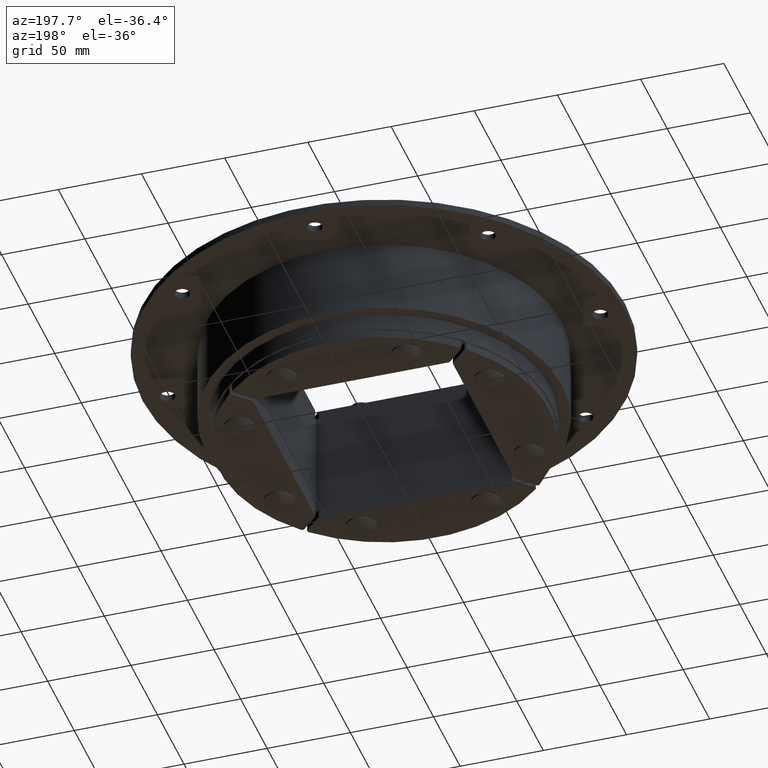
[diagram: clean part render]
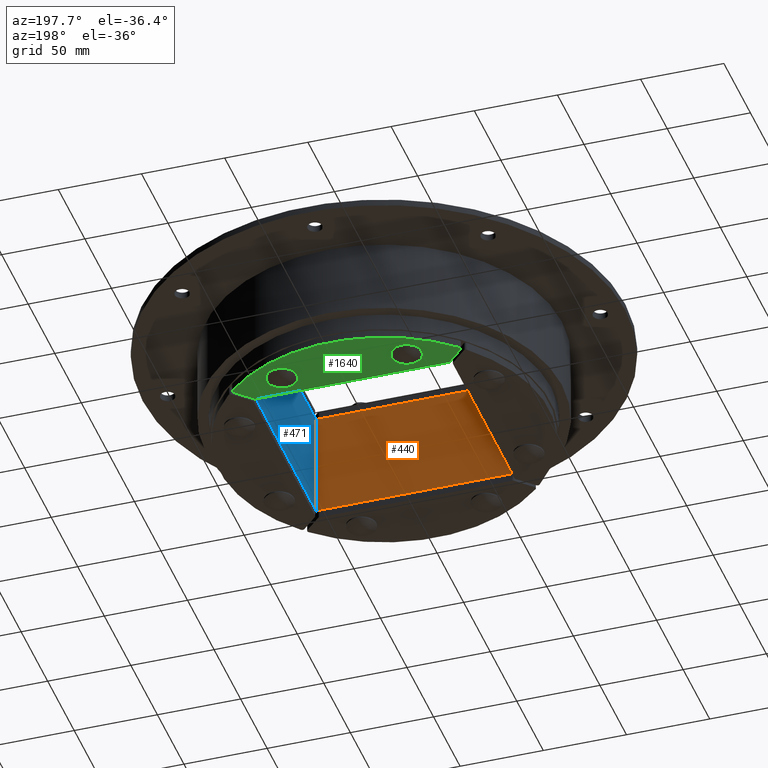
[diagram: same view with three faces highlighted in distinct colors, each labeled with its STEP entity id]
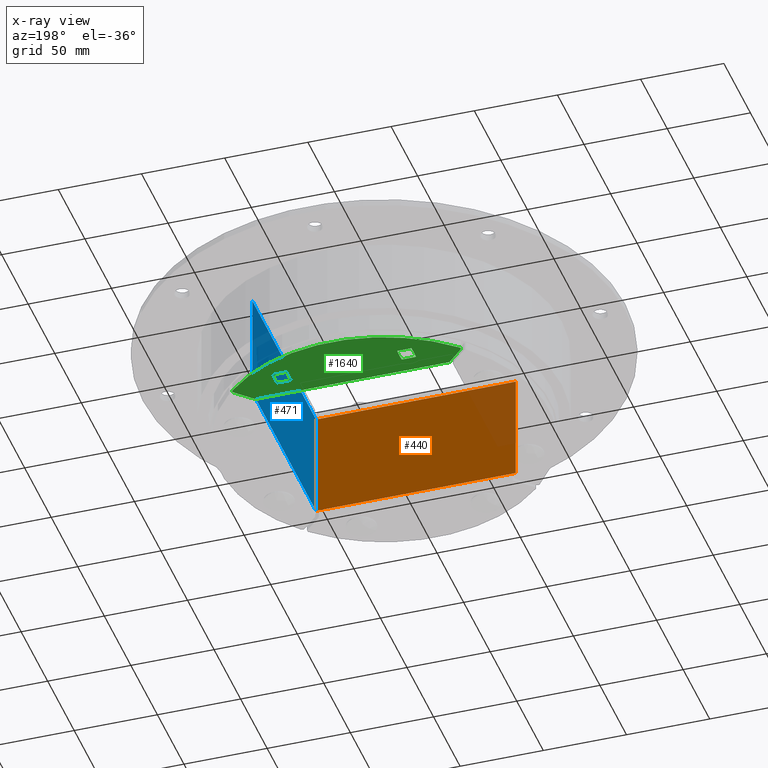
[diagram: x-ray of the same camera — body ghosted, the three highlighted faces saturated]
A machine part, auxiliary view with three faces highlighted in distinct colors.
The next image is the same camera in x-ray (body ghosted, the three faces saturated) — at least one of them is partly hidden behind the body in this view.
Their STEP definitions:

[orange] entity #440 — the highlighted planar face has unit normal (0, -1, 0).
#377=CARTESIAN_POINT('',(-60.0,-60.0,-65.0));
#378=VERTEX_POINT('',#377);
#393=CARTESIAN_POINT('',(-60.0,-60.0,0.0));
#394=VERTEX_POINT('',#393);
#401=CARTESIAN_POINT('',(-60.0,-60.0,0.0));
#402=DIRECTION('',(0.0,0.0,-1.0));
#403=VECTOR('',#402,65.0);
#404=LINE('',#401,#403);
#405=EDGE_CURVE('',#394,#378,#404,.T.);
#410=CARTESIAN_POINT('',(60.0,-60.0,0.0));
#411=DIRECTION('',(0.0,-1.0,0.0));
#412=DIRECTION('',(-1.0,0.0,0.0));
#413=AXIS2_PLACEMENT_3D('',#410,#411,#412);
#414=PLANE('',#413);
#415=CARTESIAN_POINT('',(60.0,-60.0,-65.0));
#416=VERTEX_POINT('',#415);
#417=CARTESIAN_POINT('',(-60.0,-60.0,-65.0));
#418=DIRECTION('',(1.0,0.0,0.0));
#419=VECTOR('',#418,120.0);
#420=LINE('',#417,#419);
#421=EDGE_CURVE('',#378,#416,#420,.T.);
#422=ORIENTED_EDGE('',*,*,#421,.F.);
#423=ORIENTED_EDGE('',*,*,#405,.F.);
#424=CARTESIAN_POINT('',(60.0,-60.0,0.0));
#425=VERTEX_POINT('',#424);
#426=CARTESIAN_POINT('',(60.0,-60.0,0.0));
#427=DIRECTION('',(-1.0,0.0,0.0));
#428=VECTOR('',#427,120.0);
#429=LINE('',#426,#428);
#430=EDGE_CURVE('',#425,#394,#429,.T.);
#431=ORIENTED_EDGE('',*,*,#430,.F.);
#432=CARTESIAN_POINT('',(60.0,-60.0,0.0));
#433=DIRECTION('',(0.0,0.0,-1.0));
#434=VECTOR('',#433,65.0);
#435=LINE('',#432,#434);
#436=EDGE_CURVE('',#425,#416,#435,.T.);
#437=ORIENTED_EDGE('',*,*,#436,.T.);
#438=EDGE_LOOP('',(#422,#423,#431,#437));
#439=FACE_OUTER_BOUND('',#438,.T.);
#440=ADVANCED_FACE('',(#439),#414,.F.);

[blue] entity #471 — the highlighted planar face has unit normal (1, 0, 0).
#415=CARTESIAN_POINT('',(60.0,-60.0,-65.0));
#416=VERTEX_POINT('',#415);
#424=CARTESIAN_POINT('',(60.0,-60.0,0.0));
#425=VERTEX_POINT('',#424);
#432=CARTESIAN_POINT('',(60.0,-60.0,0.0));
#433=DIRECTION('',(0.0,0.0,-1.0));
#434=VECTOR('',#433,65.0);
#435=LINE('',#432,#434);
#436=EDGE_CURVE('',#425,#416,#435,.T.);
#441=CARTESIAN_POINT('',(60.0,60.0,0.0));
#442=DIRECTION('',(1.0,0.0,0.0));
#443=DIRECTION('',(0.0,-1.0,0.0));
#444=AXIS2_PLACEMENT_3D('',#441,#442,#443);
#445=PLANE('',#444);
#446=CARTESIAN_POINT('',(60.0,60.0,-65.0));
#447=VERTEX_POINT('',#446);
#448=CARTESIAN_POINT('',(60.0,-60.0,-65.0));
#449=DIRECTION('',(0.0,1.0,0.0));
#450=VECTOR('',#449,120.0);
#451=LINE('',#448,#450);
#452=EDGE_CURVE('',#416,#447,#451,.T.);
#453=ORIENTED_EDGE('',*,*,#452,.F.);
#454=ORIENTED_EDGE('',*,*,#436,.F.);
#455=CARTESIAN_POINT('',(60.0,60.0,0.0));
#456=VERTEX_POINT('',#455);
#457=CARTESIAN_POINT('',(60.0,60.0,0.0));
#458=DIRECTION('',(0.0,-1.0,0.0));
#459=VECTOR('',#458,120.0);
#460=LINE('',#457,#459);
#461=EDGE_CURVE('',#456,#425,#460,.T.);
#462=ORIENTED_EDGE('',*,*,#461,.F.);
#463=CARTESIAN_POINT('',(60.0,60.0,0.0));
#464=DIRECTION('',(0.0,0.0,-1.0));
#465=VECTOR('',#464,65.0);
#466=LINE('',#463,#465);
#467=EDGE_CURVE('',#456,#447,#466,.T.);
#468=ORIENTED_EDGE('',*,*,#467,.T.);
#469=EDGE_LOOP('',(#453,#454,#462,#468));
#470=FACE_OUTER_BOUND('',#469,.T.);
#471=ADVANCED_FACE('',(#470),#445,.F.);

[green] entity #1640 — the highlighted planar face has unit normal (0, 0, 1).
#1372=CARTESIAN_POINT('',(68.213136979264561,69.627350541637654,-5.0));
#1373=VERTEX_POINT('',#1372);
#1374=CARTESIAN_POINT('',(68.185591835292186,71.775518570546978,-5.0));
#1375=VERTEX_POINT('',#1374);
#1376=CARTESIAN_POINT('',(67.152476807484732,70.688010713417498,-5.0));
#1377=DIRECTION('',(0.0,0.0,1.0));
#1378=DIRECTION('',(0.999917800334658,0.012821566748999,0.0));
#1379=AXIS2_PLACEMENT_3D('',#1376,#1377,#1378);
#1380=CIRCLE('',#1379,1.5);
#1381=EDGE_CURVE('',#1373,#1375,#1380,.T.);
#1415=CARTESIAN_POINT('',(-68.1855918352922,71.775518570546964,-5.0));
#1416=VERTEX_POINT('',#1415);
#1417=CARTESIAN_POINT('',(0.0,0.0,-5.0));
#1418=DIRECTION('',(0.0,0.0,-1.0));
#1419=DIRECTION('',(-1.0,0.0,0.0));
#1420=AXIS2_PLACEMENT_3D('',#1417,#1418,#1419);
#1421=CIRCLE('',#1420,99.0);
#1422=EDGE_CURVE('',#1416,#1375,#1421,.T.);
#1442=CARTESIAN_POINT('',(-1.010334E-015,0.0,-5.0));
#1443=DIRECTION('',(0.0,0.0,1.0));
#1444=DIRECTION('',(1.0,0.0,0.0));
#1445=AXIS2_PLACEMENT_3D('',#1442,#1443,#1444);
#1446=PLANE('',#1445);
#1447=ORIENTED_EDGE('',*,*,#1381,.F.);
#1448=CARTESIAN_POINT('',(58.925126265847084,60.339339828220176,-5.0));
#1449=VERTEX_POINT('',#1448);
#1450=CARTESIAN_POINT('',(68.213136979264576,69.627350541637654,-5.0));
#1451=DIRECTION('',(-0.707106781186548,-0.707106781186547,0.0));
#1452=VECTOR('',#1451,13.135230718381592);
#1453=LINE('',#1450,#1452);
#1454=EDGE_CURVE('',#1373,#1449,#1453,.T.);
#1455=ORIENTED_EDGE('',*,*,#1454,.T.);
#1456=CARTESIAN_POINT('',(57.864466094067282,59.900000000000006,-5.0));
#1457=VERTEX_POINT('',#1456);
#1458=CARTESIAN_POINT('',(57.864466094067275,61.400000000000006,-5.0));
#1459=DIRECTION('',(0.0,0.0,1.0));
#1460=DIRECTION('',(0.382683432365089,-0.923879532511287,0.0));
#1461=AXIS2_PLACEMENT_3D('',#1458,#1459,#1460);
#1462=CIRCLE('',#1461,1.5);
#1463=EDGE_CURVE('',#1457,#1449,#1462,.T.);
#1464=ORIENTED_EDGE('',*,*,#1463,.F.);
#1465=CARTESIAN_POINT('',(-57.864466094067275,59.900000000000006,-5.0));
#1466=VERTEX_POINT('',#1465);
#1467=CARTESIAN_POINT('',(57.864466094067282,59.900000000000006,-5.0));
#1468=DIRECTION('',(-1.0,0.0,0.0));
#1469=VECTOR('',#1468,115.72893218813456);
#1470=LINE('',#1467,#1469);
#1471=EDGE_CURVE('',#1457,#1466,#1470,.T.);
#1472=ORIENTED_EDGE('',*,*,#1471,.T.);
#1473=CARTESIAN_POINT('',(-58.925126265847084,60.339339828220176,-5.0));
#1474=VERTEX_POINT('',#1473);
#1475=CARTESIAN_POINT('',(-57.864466094067275,61.400000000000006,-5.0));
#1476=DIRECTION('',(0.0,0.0,1.0));
#1477=DIRECTION('',(-0.382683432365089,-0.923879532511287,0.0));
#1478=AXIS2_PLACEMENT_3D('',#1475,#1476,#1477);
#1479=CIRCLE('',#1478,1.5);
#1480=EDGE_CURVE('',#1474,#1466,#1479,.T.);
#1481=ORIENTED_EDGE('',*,*,#1480,.F.);
#1482=CARTESIAN_POINT('',(-68.213136979264561,69.627350541637654,-5.0));
#1483=VERTEX_POINT('',#1482);
#1484=CARTESIAN_POINT('',(-58.925126265847098,60.33933982822019,-5.0));
#1485=DIRECTION('',(-0.707106781186548,0.707106781186547,0.0));
#1486=VECTOR('',#1485,13.135230718381592);
#1487=LINE('',#1484,#1486);
#1488=EDGE_CURVE('',#1474,#1483,#1487,.T.);
#1489=ORIENTED_EDGE('',*,*,#1488,.T.);
#1490=CARTESIAN_POINT('',(-67.152476807484746,70.688010713417469,-5.0));
#1491=DIRECTION('',(0.0,0.0,1.0));
#1492=DIRECTION('',(-0.999917800334658,0.012821566749016,0.0));
#1493=AXIS2_PLACEMENT_3D('',#1490,#1491,#1492);
#1494=CIRCLE('',#1493,1.5);
#1495=EDGE_CURVE('',#1416,#1483,#1494,.T.);
#1496=ORIENTED_EDGE('',*,*,#1495,.F.);
#1497=ORIENTED_EDGE('',*,*,#1422,.T.);
#1498=EDGE_LOOP('',(#1447,#1455,#1464,#1472,#1481,#1489,#1496,#1497));
#1499=FACE_OUTER_BOUND('',#1498,.T.);
#1500=CARTESIAN_POINT('',(33.65000000000002,79.350000000000009,-5.0));
#1501=VERTEX_POINT('',#1500);
#1502=CARTESIAN_POINT('',(33.15000000000002,78.849999999999994,-5.0));
#1503=VERTEX_POINT('',#1502);
#1504=CARTESIAN_POINT('',(33.65000000000002,78.849999999999994,-5.0));
#1505=DIRECTION('',(0.0,0.0,1.0));
#1506=DIRECTION('',(-1.0,0.0,0.0));
#1507=AXIS2_PLACEMENT_3D('',#1504,#1505,#1506);
#1508=CIRCLE('',#1507,0.5);
#1509=EDGE_CURVE('',#1501,#1503,#1508,.T.);
#1510=ORIENTED_EDGE('',*,*,#1509,.T.);
#1511=CARTESIAN_POINT('',(33.15000000000002,71.149999999999977,-5.0));
#1512=VERTEX_POINT('',#1511);
#1513=CARTESIAN_POINT('',(33.15000000000002,78.849999999999994,-5.0));
#1514=DIRECTION('',(0.0,-1.0,0.0));
#1515=VECTOR('',#1514,7.700000000000017);
#1516=LINE('',#1513,#1515);
#1517=EDGE_CURVE('',#1503,#1512,#1516,.T.);
#1518=ORIENTED_EDGE('',*,*,#1517,.T.);
#1519=CARTESIAN_POINT('',(33.65000000000002,70.649999999999991,-5.0));
#1520=VERTEX_POINT('',#1519);
#1521=CARTESIAN_POINT('',(33.65000000000002,71.149999999999991,-5.0));
#1522=DIRECTION('',(0.0,0.0,1.0));
#1523=DIRECTION('',(0.0,-1.0,0.0));
#1524=AXIS2_PLACEMENT_3D('',#1521,#1522,#1523);
#1525=CIRCLE('',#1524,0.5);
#1526=EDGE_CURVE('',#1512,#1520,#1525,.T.);
#1527=ORIENTED_EDGE('',*,*,#1526,.T.);
#1528=CARTESIAN_POINT('',(41.350000000000016,70.649999999999991,-5.0));
#1529=VERTEX_POINT('',#1528);
#1530=CARTESIAN_POINT('',(33.65000000000002,70.649999999999991,-5.0));
#1531=DIRECTION('',(1.0,0.0,0.0));
#1532=VECTOR('',#1531,7.699999999999996);
#1533=LINE('',#1530,#1532);
#1534=EDGE_CURVE('',#1520,#1529,#1533,.T.);
#1535=ORIENTED_EDGE('',*,*,#1534,.T.);
#1536=CARTESIAN_POINT('',(41.850000000000023,71.149999999999977,-5.0));
#1537=VERTEX_POINT('',#1536);
#1538=CARTESIAN_POINT('',(41.350000000000016,71.149999999999991,-5.0));
#1539=DIRECTION('',(0.0,0.0,1.0));
#1540=DIRECTION('',(1.0,0.0,0.0));
#1541=AXIS2_PLACEMENT_3D('',#1538,#1539,#1540);
#1542=CIRCLE('',#1541,0.5);
#1543=EDGE_CURVE('',#1529,#1537,#1542,.T.);
#1544=ORIENTED_EDGE('',*,*,#1543,.T.);
#1545=CARTESIAN_POINT('',(41.850000000000016,78.849999999999994,-5.0));
#1546=VERTEX_POINT('',#1545);
#1547=CARTESIAN_POINT('',(41.850000000000016,71.149999999999977,-5.0));
#1548=DIRECTION('',(0.0,1.0,0.0));
#1549=VECTOR('',#1548,7.700000000000031);
#1550=LINE('',#1547,#1549);
#1551=EDGE_CURVE('',#1537,#1546,#1550,.T.);
#1552=ORIENTED_EDGE('',*,*,#1551,.T.);
#1553=CARTESIAN_POINT('',(41.350000000000016,79.350000000000009,-5.0));
#1554=VERTEX_POINT('',#1553);
#1555=CARTESIAN_POINT('',(41.350000000000023,78.849999999999994,-5.0));
#1556=DIRECTION('',(0.0,0.0,1.0));
#1557=DIRECTION('',(0.0,1.0,0.0));
#1558=AXIS2_PLACEMENT_3D('',#1555,#1556,#1557);
#1559=CIRCLE('',#1558,0.5);
#1560=EDGE_CURVE('',#1546,#1554,#1559,.T.);
#1561=ORIENTED_EDGE('',*,*,#1560,.T.);
#1562=CARTESIAN_POINT('',(41.350000000000016,79.350000000000009,-5.0));
#1563=DIRECTION('',(-1.0,0.0,0.0));
#1564=VECTOR('',#1563,7.699999999999996);
#1565=LINE('',#1562,#1564);
#1566=EDGE_CURVE('',#1554,#1501,#1565,.T.);
#1567=ORIENTED_EDGE('',*,*,#1566,.T.);
#1568=EDGE_LOOP('',(#1510,#1518,#1527,#1535,#1544,#1552,#1561,#1567));
#1569=FACE_BOUND('',#1568,.T.);
#1570=CARTESIAN_POINT('',(-41.850000000000023,71.149999999999977,-5.0));
#1571=VERTEX_POINT('',#1570);
#1572=CARTESIAN_POINT('',(-41.350000000000016,70.649999999999991,-5.0));
#1573=VERTEX_POINT('',#1572);
#1574=CARTESIAN_POINT('',(-41.350000000000016,71.149999999999991,-5.0));
#1575=DIRECTION('',(0.0,0.0,1.0));
#1576=DIRECTION('',(-1.0,0.0,0.0));
#1577=AXIS2_PLACEMENT_3D('',#1574,#1575,#1576);
#1578=CIRCLE('',#1577,0.5);
#1579=EDGE_CURVE('',#1571,#1573,#1578,.T.);
#1580=ORIENTED_EDGE('',*,*,#1579,.T.);
#1581=CARTESIAN_POINT('',(-33.65000000000002,70.649999999999991,-5.0));
#1582=VERTEX_POINT('',#1581);
#1583=CARTESIAN_POINT('',(-41.350000000000016,70.649999999999991,-5.0));
#1584=DIRECTION('',(1.0,0.0,0.0));
#1585=VECTOR('',#1584,7.699999999999996);
#1586=LINE('',#1583,#1585);
#1587=EDGE_CURVE('',#1573,#1582,#1586,.T.);
#1588=ORIENTED_EDGE('',*,*,#1587,.T.);
#1589=CARTESIAN_POINT('',(-33.15000000000002,71.149999999999977,-5.0));
#1590=VERTEX_POINT('',#1589);
#1591=CARTESIAN_POINT('',(-33.65000000000002,71.149999999999991,-5.0));
#1592=DIRECTION('',(0.0,0.0,1.0));
#1593=DIRECTION('',(0.0,-1.0,0.0));
#1594=AXIS2_PLACEMENT_3D('',#1591,#1592,#1593);
#1595=CIRCLE('',#1594,0.5);
#1596=EDGE_CURVE('',#1582,#1590,#1595,.T.);
#1597=ORIENTED_EDGE('',*,*,#1596,.T.);
#1598=CARTESIAN_POINT('',(-33.15000000000002,78.849999999999994,-5.0));
#1599=VERTEX_POINT('',#1598);
#1600=CARTESIAN_POINT('',(-33.15000000000002,71.149999999999977,-5.0));
#1601=DIRECTION('',(0.0,1.0,0.0));
#1602=VECTOR('',#1601,7.700000000000017);
#1603=LINE('',#1600,#1602);
#1604=EDGE_CURVE('',#1590,#1599,#1603,.T.);
#1605=ORIENTED_EDGE('',*,*,#1604,.T.);
#1606=CARTESIAN_POINT('',(-33.65000000000002,79.350000000000009,-5.0));
#1607=VERTEX_POINT('',#1606);
#1608=CARTESIAN_POINT('',(-33.65000000000002,78.849999999999994,-5.0));
#1609=DIRECTION('',(0.0,0.0,1.0));
#1610=DIRECTION('',(1.0,0.0,0.0));
#1611=AXIS2_PLACEMENT_3D('',#1608,#1609,#1610);
#1612=CIRCLE('',#1611,0.5);
#1613=EDGE_CURVE('',#1599,#1607,#1612,.T.);
#1614=ORIENTED_EDGE('',*,*,#1613,.T.);
#1615=CARTESIAN_POINT('',(-41.350000000000016,79.350000000000009,-5.0));
#1616=VERTEX_POINT('',#1615);
#1617=CARTESIAN_POINT('',(-33.65000000000002,79.350000000000009,-5.0));
#1618=DIRECTION('',(-1.0,0.0,0.0));
#1619=VECTOR('',#1618,7.699999999999996);
#1620=LINE('',#1617,#1619);
#1621=EDGE_CURVE('',#1607,#1616,#1620,.T.);
#1622=ORIENTED_EDGE('',*,*,#1621,.T.);
#1623=CARTESIAN_POINT('',(-41.850000000000016,78.849999999999994,-5.0));
#1624=VERTEX_POINT('',#1623);
#1625=CARTESIAN_POINT('',(-41.350000000000023,78.849999999999994,-5.0));
#1626=DIRECTION('',(0.0,0.0,1.0));
#1627=DIRECTION('',(0.0,1.0,0.0));
#1628=AXIS2_PLACEMENT_3D('',#1625,#1626,#1627);
#1629=CIRCLE('',#1628,0.5);
#1630=EDGE_CURVE('',#1616,#1624,#1629,.T.);
#1631=ORIENTED_EDGE('',*,*,#1630,.T.);
#1632=CARTESIAN_POINT('',(-41.850000000000009,78.850000000000009,-5.0));
#1633=DIRECTION('',(0.0,-1.0,0.0));
#1634=VECTOR('',#1633,7.700000000000031);
#1635=LINE('',#1632,#1634);
#1636=EDGE_CURVE('',#1624,#1571,#1635,.T.);
#1637=ORIENTED_EDGE('',*,*,#1636,.T.);
#1638=EDGE_LOOP('',(#1580,#1588,#1597,#1605,#1614,#1622,#1631,#1637));
#1639=FACE_BOUND('',#1638,.T.);
#1640=ADVANCED_FACE('',(#1499,#1569,#1639),#1446,.F.);